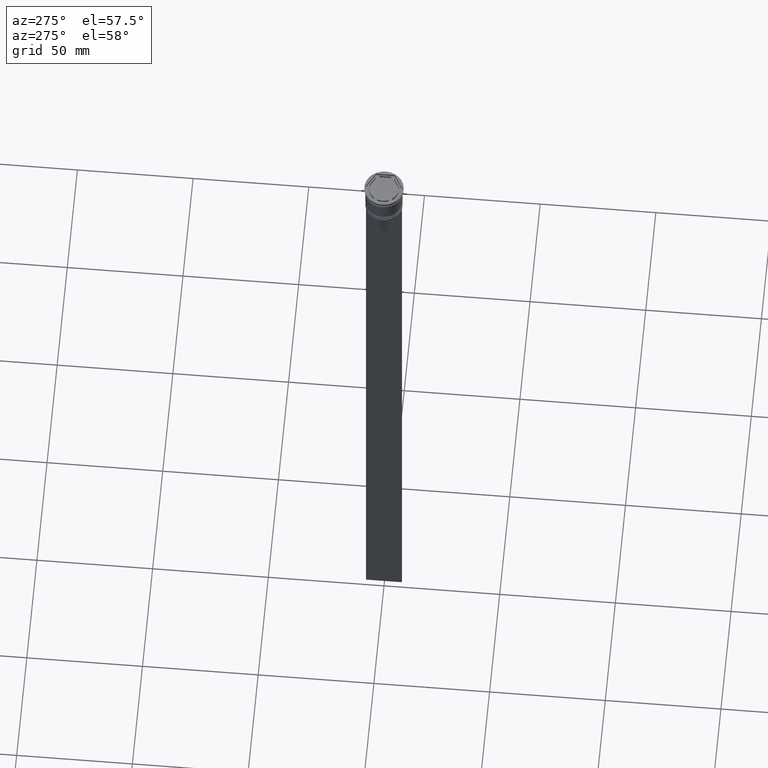
[diagram: clean part render]
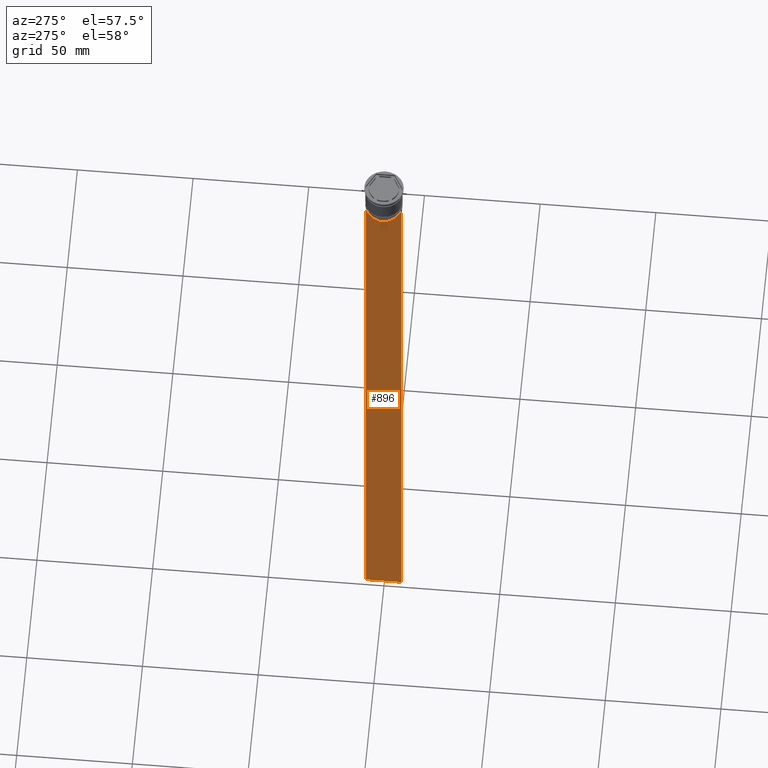
[diagram: same view with one face highlighted and labeled with its STEP entity id]
A machine part, auxiliary view. The second image highlights one B-rep face of the part: STEP entity #896.
In plain terms, the highlighted planar face has unit normal (-1, 0, 0).
Its self-contained STEP definition (entity closure, byte-faithful):
#36 = VERTEX_POINT ( 'NONE', #2091 ) ;
#97 = CARTESIAN_POINT ( 'NONE',  ( -0.4999999999999998890, -6.547597841511246131, -14.33335192438652328 ) ) ;
#119 = EDGE_LOOP ( 'NONE', ( #1330, #2187, #2229, #2171, #925, #1905, #644, #1142, #2212, #2345 ) ) ;
#124 = DIRECTION ( 'NONE',  ( 0.000000000000000000, -1.000000000000000000, 0.000000000000000000 ) ) ;
#192 = VECTOR ( 'NONE', #124, 1000.000000000000000 ) ;
#217 = CARTESIAN_POINT ( 'NONE',  ( -0.4999999999999998890, -7.749999999999999112, -314.0000000000000000 ) ) ;
#245 = VERTEX_POINT ( 'NONE', #844 ) ;
#249 = LINE ( 'NONE', #448, #2163 ) ;
#326 = CARTESIAN_POINT ( 'NONE',  ( -0.4999999999999998890, 6.714736947114692711, -14.16668390704818847 ) ) ;
#380 = LINE ( 'NONE', #575, #509 ) ;
#420 = FACE_OUTER_BOUND ( 'NONE', #119, .T. ) ;
#439 = VERTEX_POINT ( 'NONE', #2027 ) ;
#448 = CARTESIAN_POINT ( 'NONE',  ( -0.4999999999999998890, 6.399999999999999467, -17.00000000000000000 ) ) ;
#462 = CARTESIAN_POINT ( 'NONE',  ( -0.4999999999999998890, -6.380438856379708312, -17.00000000000000000 ) ) ;
#471 = EDGE_CURVE ( 'NONE', #2164, #2061, #2333, .T. ) ;
#483 = CARTESIAN_POINT ( 'NONE',  ( -0.4999999999999998890, -6.380438856379708312, -14.50000000000000000 ) ) ;
#509 = VECTOR ( 'NONE', #791, 1000.000000000000000 ) ;
#540 = VECTOR ( 'NONE', #1177, 1000.000000000000000 ) ;
#544 = VERTEX_POINT ( 'NONE', #1238 ) ;
#566 = EDGE_CURVE ( 'NONE', #439, #544, #1161, .T. ) ;
#575 = CARTESIAN_POINT ( 'NONE',  ( -0.4999999999999998890, -6.380438856379708312, 0.000000000000000000 ) ) ;
#582 = LINE ( 'NONE', #1318, #192 ) ;
#591 = LINE ( 'NONE', #217, #715 ) ;
#604 = LINE ( 'NONE', #1133, #994 ) ;
#644 = ORIENTED_EDGE ( 'NONE', *, *, #471, .F. ) ;
#654 = EDGE_CURVE ( 'NONE', #2297, #1319, #249, .T. ) ;
#673 = CARTESIAN_POINT ( 'NONE',  ( -0.4999999999999998890, -6.881860213634098500, -14.00000000000000178 ) ) ;
#676 = EDGE_CURVE ( 'NONE', #245, #2297, #604, .T. ) ;
#715 = VECTOR ( 'NONE', #1691, 1000.000000000000000 ) ;
#791 = DIRECTION ( 'NONE',  ( -0.000000000000000000, -0.000000000000000000, 1.000000000000000000 ) ) ;
#798 = LINE ( 'NONE', #1355, #814 ) ;
#814 = VECTOR ( 'NONE', #1902, 1000.000000000000000 ) ;
#832 = CARTESIAN_POINT ( 'NONE',  ( -0.4999999999999998890, -6.380438856379708312, -14.50000000000000000 ) ) ;
#844 = CARTESIAN_POINT ( 'NONE',  ( -0.4999999999999998890, 6.380438856379708312, -14.50000000000000000 ) ) ;
#896 = ADVANCED_FACE ( 'NONE', ( #420 ), #1514, .T. ) ;
#909 = B_SPLINE_CURVE_WITH_KNOTS ( 'NONE', 3,
 ( #1982, #326, #1045, #2174 ),
 .UNSPECIFIED., .F., .F.,
 ( 4, 4 ),
 ( 0.01172465562756038263, 0.01243276816391822651 ),
 .UNSPECIFIED. ) ;
#925 = ORIENTED_EDGE ( 'NONE', *, *, #1493, .F. ) ;
#961 = DIRECTION ( 'NONE',  ( -1.000000000000000000, 0.000000000000000000, 0.000000000000000000 ) ) ;
#965 = DIRECTION ( 'NONE',  ( 0.000000000000000000, -1.000000000000000000, 0.000000000000000000 ) ) ;
#967 = CARTESIAN_POINT ( 'NONE',  ( -0.4999999999999998890, -7.749999999999999112, 1.532224567009066840 ) ) ;
#983 = CARTESIAN_POINT ( 'NONE',  ( -0.4999999999999998890, 7.750000000000002665, 1.532224567009066840 ) ) ;
#994 = VECTOR ( 'NONE', #1185, 1000.000000000000000 ) ;
#1009 = EDGE_CURVE ( 'NONE', #439, #1475, #798, .T. ) ;
#1032 = CARTESIAN_POINT ( 'NONE',  ( -0.4999999999999998890, -6.714736947305992132, -14.16668390685738999 ) ) ;
#1045 = CARTESIAN_POINT ( 'NONE',  ( -0.4999999999999998890, 6.547597841304911626, -14.33335192459222718 ) ) ;
#1133 = CARTESIAN_POINT ( 'NONE',  ( -0.4999999999999998890, 6.380438856379708312, 0.000000000000000000 ) ) ;
#1142 = ORIENTED_EDGE ( 'NONE', *, *, #1331, .F. ) ;
#1161 = LINE ( 'NONE', #983, #540 ) ;
#1177 = DIRECTION ( 'NONE',  ( 0.000000000000000000, 0.000000000000000000, -1.000000000000000000 ) ) ;
#1185 = DIRECTION ( 'NONE',  ( 0.000000000000000000, 0.000000000000000000, -1.000000000000000000 ) ) ;
#1238 = CARTESIAN_POINT ( 'NONE',  ( -0.4999999999999998890, 7.750000000000002665, -314.0000000000000000 ) ) ;
#1318 = CARTESIAN_POINT ( 'NONE',  ( -0.4999999999999998890, -7.749999999999999112, -14.00000000000000178 ) ) ;
#1319 = VERTEX_POINT ( 'NONE', #462 ) ;
#1330 = ORIENTED_EDGE ( 'NONE', *, *, #1859, .F. ) ;
#1331 = EDGE_CURVE ( 'NONE', #1319, #2164, #380, .T. ) ;
#1353 = LINE ( 'NONE', #967, #1396 ) ;
#1355 = CARTESIAN_POINT ( 'NONE',  ( -0.4999999999999998890, -7.749999999999999112, -14.00000000000000178 ) ) ;
#1383 = CARTESIAN_POINT ( 'NONE',  ( -0.4999999999999998890, -6.881860213634098500, -14.00000000000000178 ) ) ;
#1396 = VECTOR ( 'NONE', #2232, 1000.000000000000000 ) ;
#1475 = VERTEX_POINT ( 'NONE', #2076 ) ;
#1488 = CARTESIAN_POINT ( 'NONE',  ( -0.4999999999999998890, -7.749999999999999112, 1.532224567009066840 ) ) ;
#1493 = EDGE_CURVE ( 'NONE', #1963, #36, #1353, .T. ) ;
#1514 = PLANE ( 'NONE',  #2126 ) ;
#1613 = EDGE_CURVE ( 'NONE', #2061, #1963, #582, .T. ) ;
#1691 = DIRECTION ( 'NONE',  ( 0.000000000000000000, 1.000000000000000000, 0.000000000000000000 ) ) ;
#1859 = EDGE_CURVE ( 'NONE', #1475, #245, #909, .T. ) ;
#1902 = DIRECTION ( 'NONE',  ( 0.000000000000000000, -1.000000000000000000, 0.000000000000000000 ) ) ;
#1905 = ORIENTED_EDGE ( 'NONE', *, *, #1613, .F. ) ;
#1963 = VERTEX_POINT ( 'NONE', #2214 ) ;
#1982 = CARTESIAN_POINT ( 'NONE',  ( -0.4999999999999998890, 6.881860213634098500, -14.00000000000000178 ) ) ;
#2015 = EDGE_CURVE ( 'NONE', #36, #544, #591, .T. ) ;
#2027 = CARTESIAN_POINT ( 'NONE',  ( -0.4999999999999998890, 7.750000000000002665, -14.00000000000000178 ) ) ;
#2061 = VERTEX_POINT ( 'NONE', #673 ) ;
#2076 = CARTESIAN_POINT ( 'NONE',  ( -0.4999999999999998890, 6.881860213634098500, -14.00000000000000178 ) ) ;
#2091 = CARTESIAN_POINT ( 'NONE',  ( -0.4999999999999998890, -7.749999999999999112, -314.0000000000000000 ) ) ;
#2126 = AXIS2_PLACEMENT_3D ( 'NONE', #1488, #961, #2225 ) ;
#2163 = VECTOR ( 'NONE', #965, 1000.000000000000000 ) ;
#2164 = VERTEX_POINT ( 'NONE', #483 ) ;
#2171 = ORIENTED_EDGE ( 'NONE', *, *, #2015, .F. ) ;
#2174 = CARTESIAN_POINT ( 'NONE',  ( -0.4999999999999998890, 6.380438856379708312, -14.50000000000000000 ) ) ;
#2180 = CARTESIAN_POINT ( 'NONE',  ( -0.4999999999999998890, 6.380438856379708312, -17.00000000000000000 ) ) ;
#2187 = ORIENTED_EDGE ( 'NONE', *, *, #1009, .F. ) ;
#2212 = ORIENTED_EDGE ( 'NONE', *, *, #654, .F. ) ;
#2214 = CARTESIAN_POINT ( 'NONE',  ( -0.4999999999999998890, -7.749999999999999112, -14.00000000000000178 ) ) ;
#2225 = DIRECTION ( 'NONE',  ( 0.000000000000000000, 0.000000000000000000, 1.000000000000000000 ) ) ;
#2229 = ORIENTED_EDGE ( 'NONE', *, *, #566, .T. ) ;
#2232 = DIRECTION ( 'NONE',  ( 0.000000000000000000, 0.000000000000000000, -1.000000000000000000 ) ) ;
#2297 = VERTEX_POINT ( 'NONE', #2180 ) ;
#2333 = B_SPLINE_CURVE_WITH_KNOTS ( 'NONE', 3,
 ( #832, #97, #1032, #1383 ),
 .UNSPECIFIED., .F., .F.,
 ( 4, 4 ),
 ( 0.02996184199614749730, 0.03067452609193703841 ),
 .UNSPECIFIED. ) ;
#2345 = ORIENTED_EDGE ( 'NONE', *, *, #676, .F. ) ;